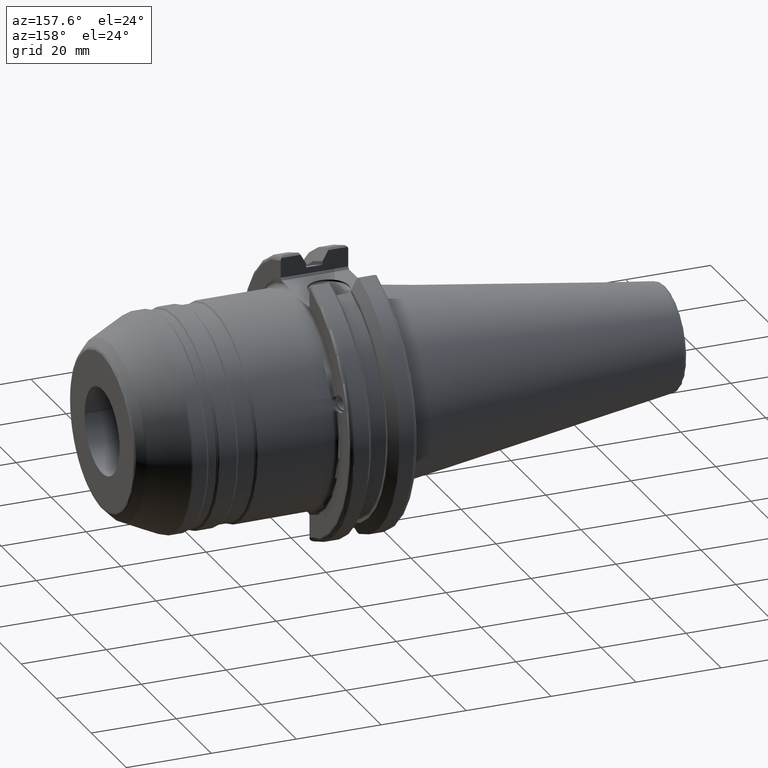
[diagram: clean part render]
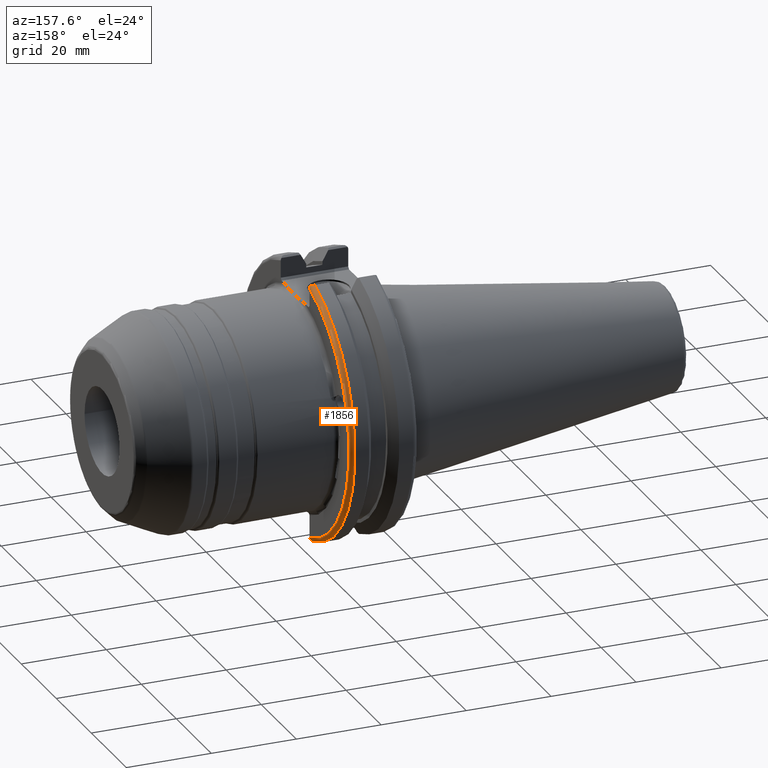
[diagram: same view with one face highlighted and labeled with its STEP entity id]
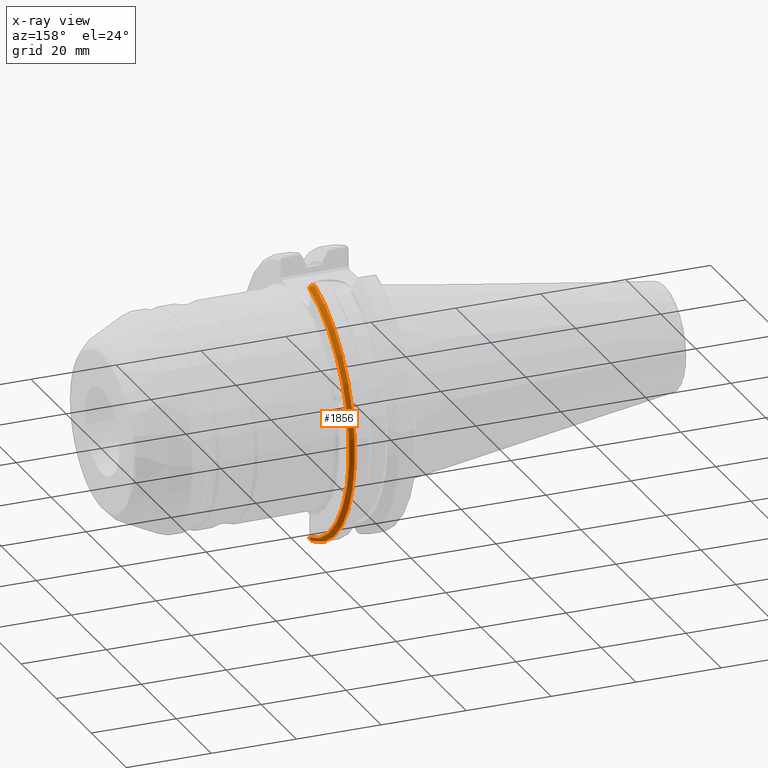
[diagram: x-ray of the same camera — body ghosted, the highlighted face saturated]
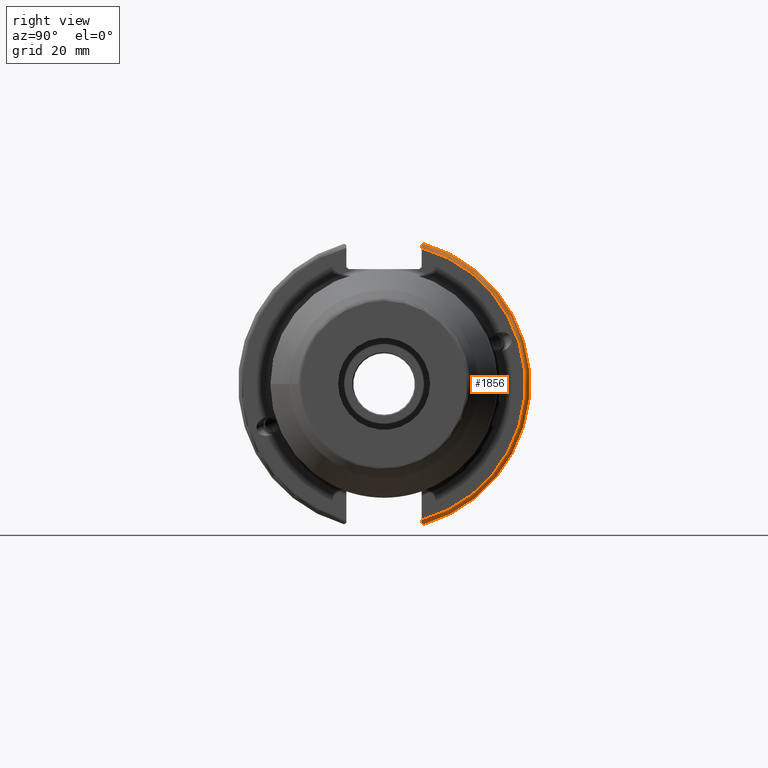
[diagram: same view with one face highlighted and labeled with its STEP entity id]
A machine part, auxiliary view. The second image highlights one B-rep face of the part: STEP entity #1856.
The next image is the same camera in x-ray: the body ghosted, the highlighted face saturated — about 0% of this face is hidden behind the body in this view.
A second angle (right view) of the same face is appended — the face is thin or edge-on in the first view.
In plain terms, the highlighted toroidal blend (fillet) surface has major radius 30.75 mm and minor (blend) radius 1 mm.
Its self-contained STEP definition (entity closure, byte-faithful):
#128=B_SPLINE_CURVE_WITH_KNOTS('',3,(#3551,#3552,#3553,#3554,#3555,#3556),
 .UNSPECIFIED.,.F.,.F.,(4,2,4),(0.0977210450333169,0.111963554372601,0.150804064902975),
 .UNSPECIFIED.);
#129=B_SPLINE_CURVE_WITH_KNOTS('',3,(#3558,#3559,#3560,#3561,#3562,#3563),
 .UNSPECIFIED.,.F.,.F.,(4,2,4),(0.452741154494497,0.491581665024871,0.505824174364157),
 .UNSPECIFIED.);
#130=B_SPLINE_CURVE_WITH_KNOTS('',3,(#3565,#3566,#3567,#3568,#3569,#3570,
#3571,#3572),.UNSPECIFIED.,.F.,.F.,(4,2,2,4),(-0.104180282751876,-0.0729784742461442,
-0.034352475387498,0.),.UNSPECIFIED.);
#131=B_SPLINE_CURVE_WITH_KNOTS('',3,(#3575,#3576,#3577,#3578,#3579,#3580,
#3581,#3582),.UNSPECIFIED.,.F.,.F.,(4,2,2,4),(0.,0.0364423539742875,0.0778717450894454,
0.104302157163828),.UNSPECIFIED.);
#433=FACE_OUTER_BOUND('',#551,.T.);
#551=EDGE_LOOP('',(#1551,#1552,#1553,#1554,#1555,#1556));
#666=CIRCLE('',#2023,30.75);
#694=CIRCLE('',#2107,31.75);
#790=VERTEX_POINT('',#3218);
#791=VERTEX_POINT('',#3220);
#851=VERTEX_POINT('',#3550);
#852=VERTEX_POINT('',#3557);
#853=VERTEX_POINT('',#3564);
#854=VERTEX_POINT('',#3573);
#1009=EDGE_CURVE('',#791,#790,#666,.T.);
#1099=EDGE_CURVE('',#851,#791,#128,.T.);
#1100=EDGE_CURVE('',#790,#852,#129,.T.);
#1101=EDGE_CURVE('',#852,#853,#130,.T.);
#1102=EDGE_CURVE('',#853,#854,#694,.T.);
#1103=EDGE_CURVE('',#854,#851,#131,.T.);
#1551=ORIENTED_EDGE('',*,*,#1099,.T.);
#1552=ORIENTED_EDGE('',*,*,#1009,.T.);
#1553=ORIENTED_EDGE('',*,*,#1100,.T.);
#1554=ORIENTED_EDGE('',*,*,#1101,.T.);
#1555=ORIENTED_EDGE('',*,*,#1102,.T.);
#1556=ORIENTED_EDGE('',*,*,#1103,.T.);
#1788=TOROIDAL_SURFACE('',#2106,30.75,1.);
#1856=ADVANCED_FACE('',(#433),#1788,.T.);
#2023=AXIS2_PLACEMENT_3D('',#3221,#2395,#2396);
#2106=AXIS2_PLACEMENT_3D('',#3549,#2594,#2595);
#2107=AXIS2_PLACEMENT_3D('',#3574,#2596,#2597);
#2395=DIRECTION('center_axis',(-1.,0.,0.));
#2396=DIRECTION('ref_axis',(0.,1.,-6.12323399573677E-17));
#2594=DIRECTION('center_axis',(1.,0.,0.));
#2595=DIRECTION('ref_axis',(0.,0.,-1.));
#2596=DIRECTION('center_axis',(1.,0.,0.));
#2597=DIRECTION('ref_axis',(0.,1.,-6.12323399573677E-17));
#3218=CARTESIAN_POINT('',(19.05,8.19,-29.6392712461019));
#3220=CARTESIAN_POINT('',(19.05,8.19,29.6392712461019));
#3221=CARTESIAN_POINT('Origin',(19.05,0.,0.));
#3549=CARTESIAN_POINT('Origin',(18.05,0.,0.));
#3550=CARTESIAN_POINT('',(18.9058722749097,8.19,30.1755016258903));
#3551=CARTESIAN_POINT('Ctrl Pts',(18.9058722749097,8.19,30.1755016258903));
#3552=CARTESIAN_POINT('Ctrl Pts',(18.9318163728133,8.19,30.131014531546));
#3553=CARTESIAN_POINT('Ctrl Pts',(18.9539643471756,8.19,30.0852355256475));
#3554=CARTESIAN_POINT('Ctrl Pts',(19.020485567083,8.19,29.9212724384851));
#3555=CARTESIAN_POINT('Ctrl Pts',(19.05,8.19,29.7687396145364));
#3556=CARTESIAN_POINT('Ctrl Pts',(19.05,8.19,29.6392712461019));
#3557=CARTESIAN_POINT('',(18.9058722749097,8.19,-30.1755016258903));
#3558=CARTESIAN_POINT('Ctrl Pts',(19.05,8.19,-29.6392712461019));
#3559=CARTESIAN_POINT('Ctrl Pts',(19.05,8.19,-29.7687396145364));
#3560=CARTESIAN_POINT('Ctrl Pts',(19.0204855670831,8.19,-29.9212724384851));
#3561=CARTESIAN_POINT('Ctrl Pts',(18.9539643471756,8.19,-30.0852355256475));
#3562=CARTESIAN_POINT('Ctrl Pts',(18.9318163728133,8.19,-30.131014531546));
#3563=CARTESIAN_POINT('Ctrl Pts',(18.9058722749097,8.19,-30.1755016258903));
#3564=CARTESIAN_POINT('',(18.05,8.67204822802685,-30.5427254764662));
#3565=CARTESIAN_POINT('Ctrl Pts',(18.9058722749097,8.19,-30.1755016258903));
#3566=CARTESIAN_POINT('Ctrl Pts',(18.8574463042989,8.2703682833078,-30.2367261024977));
#3567=CARTESIAN_POINT('Ctrl Pts',(18.7926702662319,8.34909446036477,-30.2966996242308));
#3568=CARTESIAN_POINT('Ctrl Pts',(18.6396724190507,8.48862804755883,-30.4029961692546));
#3569=CARTESIAN_POINT('Ctrl Pts',(18.5184414294771,8.56482138642532,-30.4610401774263));
#3570=CARTESIAN_POINT('Ctrl Pts',(18.2983170433775,8.6471881193939,-30.5237870709558));
#3571=CARTESIAN_POINT('Ctrl Pts',(18.1645082512917,8.67204822802685,-30.5427254764662));
#3572=CARTESIAN_POINT('Ctrl Pts',(18.05,8.67204822802685,-30.5427254764662));
#3573=CARTESIAN_POINT('',(18.05,8.67204822802685,30.5427254764662));
#3574=CARTESIAN_POINT('Origin',(18.05,0.,0.));
#3575=CARTESIAN_POINT('Ctrl Pts',(18.05,8.67204822802685,30.5427254764662));
#3576=CARTESIAN_POINT('Ctrl Pts',(18.1714745132476,8.67204822802685,30.5427254764662));
#3577=CARTESIAN_POINT('Ctrl Pts',(18.3129472218859,8.64410239894262,30.5214363722497));
#3578=CARTESIAN_POINT('Ctrl Pts',(18.545044361706,8.551646780666,30.4510037761381));
#3579=CARTESIAN_POINT('Ctrl Pts',(18.6711011886212,8.466075303358,30.3858155116254));
#3580=CARTESIAN_POINT('Ctrl Pts',(18.8119751533981,8.32529543089523,30.2785695477496));
#3581=CARTESIAN_POINT('Ctrl Pts',(18.8644673620074,8.25871605728283,30.2278494485451));
#3582=CARTESIAN_POINT('Ctrl Pts',(18.9058722749097,8.19,30.1755016258903));